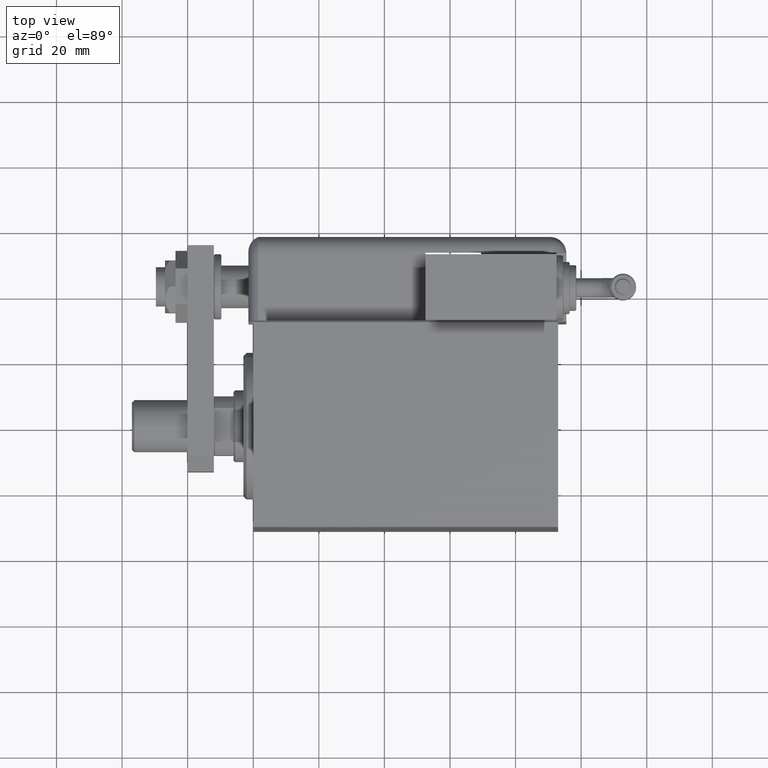
[diagram: clean part render]
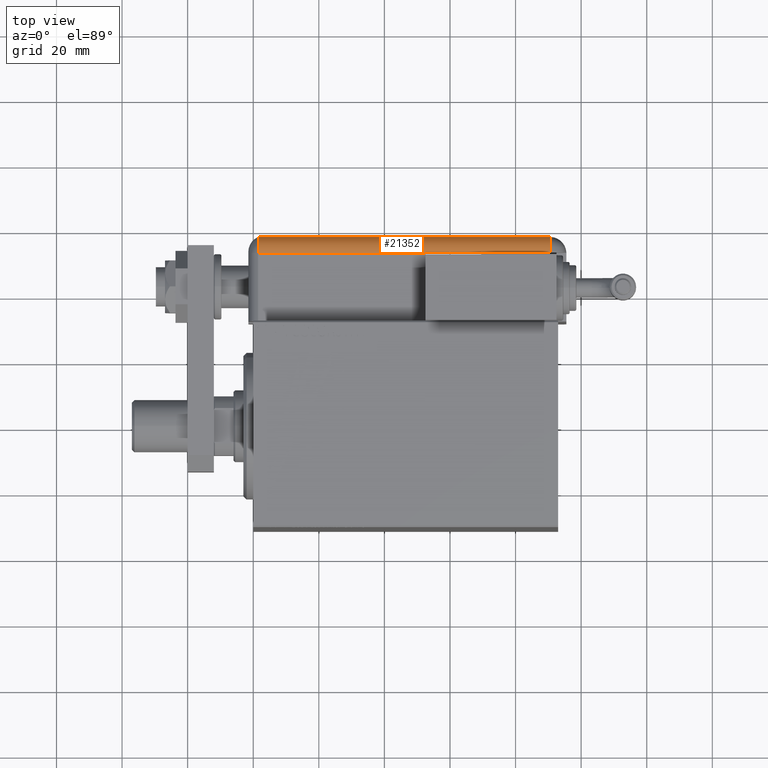
[diagram: same view with one face highlighted and labeled with its STEP entity id]
A machine part, top view. The second image highlights one B-rep face of the part: STEP entity #21352.
In plain terms, the highlighted cylindrical surface (edge-blend (fillet) strip) has radius 5 mm, axis along (1, -0, -0).
Its self-contained STEP definition (entity closure, byte-faithful):
#333 = FACE_OUTER_BOUND ( 'NONE', #27538, .T. ) ;
#1307 = CIRCLE ( 'NONE', #2290, 5.000000000000000888 ) ;
#1867 = EDGE_CURVE ( 'NONE', #25973, #57692, #42803, .T. ) ;
#2288 = DIRECTION ( 'NONE',  ( -1.000000000000000000, 0.000000000000000000, 0.000000000000000000 ) ) ;
#2290 = AXIS2_PLACEMENT_3D ( 'NONE', #12563, #44779, #2288 ) ;
#3392 = CARTESIAN_POINT ( 'NONE',  ( 28.99999999999999645, 20.79999999999998295, 94.00000000000000000 ) ) ;
#3564 = LINE ( 'NONE', #8564, #6517 ) ;
#5529 = VERTEX_POINT ( 'NONE', #5696 ) ;
#5696 = CARTESIAN_POINT ( 'NONE',  ( 23.99999999999999289, 25.79999999999998295, 5.000000000000004441 ) ) ;
#6517 = VECTOR ( 'NONE', #36678, 1000.000000000000000 ) ;
#7137 = CARTESIAN_POINT ( 'NONE',  ( 28.99599839871871154, 21.00000000000000000, 5.000000000000004441 ) ) ;
#8564 = CARTESIAN_POINT ( 'NONE',  ( 28.99999999999999645, 20.79999999999998295, 94.00000000000000000 ) ) ;
#8723 = VERTEX_POINT ( 'NONE', #3392 ) ;
#9998 = DIRECTION ( 'NONE',  ( 0.000000000000000000, 0.000000000000000000, -1.000000000000000000 ) ) ;
#11269 = CARTESIAN_POINT ( 'NONE',  ( 28.99599839871871154, 20.99999999999998579, 94.00000000000000000 ) ) ;
#12563 = CARTESIAN_POINT ( 'NONE',  ( 23.99999999999999289, 20.79999999999998295, 94.00000000000000000 ) ) ;
#14375 = CYLINDRICAL_SURFACE ( 'NONE', #53000, 5.000000000000000888 ) ;
#17599 = CIRCLE ( 'NONE', #52523, 5.000000000000000888 ) ;
#19762 = ORIENTED_EDGE ( 'NONE', *, *, #1867, .F. ) ;
#21029 = EDGE_CURVE ( 'NONE', #53462, #5529, #51701, .T. ) ;
#21352 = ADVANCED_FACE ( 'NONE', ( #333 ), #14375, .T. ) ;
#24386 = EDGE_CURVE ( 'NONE', #8723, #53462, #1307, .T. ) ;
#24971 = DIRECTION ( 'NONE',  ( -1.000000000000000000, 0.000000000000000000, 0.000000000000000000 ) ) ;
#25973 = VERTEX_POINT ( 'NONE', #7137 ) ;
#26086 = DIRECTION ( 'NONE',  ( -1.000000000000000000, 0.000000000000000000, 0.000000000000000000 ) ) ;
#27538 = EDGE_LOOP ( 'NONE', ( #50715, #19762, #36620, #48796, #30682, #51173 ) ) ;
#27962 = DIRECTION ( 'NONE',  ( 0.000000000000000000, 0.000000000000000000, -1.000000000000000000 ) ) ;
#28224 = CARTESIAN_POINT ( 'NONE',  ( 28.99599839871871154, 20.99999999999999289, 43.00000000000000000 ) ) ;
#29390 = VERTEX_POINT ( 'NONE', #39910 ) ;
#30289 = EDGE_CURVE ( 'NONE', #29390, #8723, #3564, .T. ) ;
#30682 = ORIENTED_EDGE ( 'NONE', *, *, #24386, .F. ) ;
#31091 = CARTESIAN_POINT ( 'NONE',  ( 23.99999999999999289, 25.79999999999998295, 94.00000000000000000 ) ) ;
#32622 = AXIS2_PLACEMENT_3D ( 'NONE', #45438, #49508, #26086 ) ;
#33085 = EDGE_CURVE ( 'NONE', #57692, #29390, #17599, .T. ) ;
#36338 = DIRECTION ( 'NONE',  ( 1.000000000000000000, -6.383782391594648845E-14, 0.000000000000000000 ) ) ;
#36620 = ORIENTED_EDGE ( 'NONE', *, *, #38558, .T. ) ;
#36678 = DIRECTION ( 'NONE',  ( -0.000000000000000000, -0.000000000000000000, 1.000000000000000000 ) ) ;
#38558 = EDGE_CURVE ( 'NONE', #25973, #5529, #59543, .T. ) ;
#39910 = CARTESIAN_POINT ( 'NONE',  ( 28.99999999999999645, 20.79999999999998295, 43.00000000000000000 ) ) ;
#40420 = CARTESIAN_POINT ( 'NONE',  ( 23.99999999999999289, 20.79999999999998295, 43.00000000000000000 ) ) ;
#42803 = LINE ( 'NONE', #11269, #51509 ) ;
#44779 = DIRECTION ( 'NONE',  ( -0.000000000000000000, -0.000000000000000000, 1.000000000000000000 ) ) ;
#45438 = CARTESIAN_POINT ( 'NONE',  ( 23.99999999999999289, 20.79999999999998295, 5.000000000000004441 ) ) ;
#48796 = ORIENTED_EDGE ( 'NONE', *, *, #21029, .F. ) ;
#49508 = DIRECTION ( 'NONE',  ( -0.000000000000000000, -0.000000000000000000, 1.000000000000000000 ) ) ;
#50715 = ORIENTED_EDGE ( 'NONE', *, *, #33085, .F. ) ;
#51047 = VECTOR ( 'NONE', #27962, 1000.000000000000000 ) ;
#51173 = ORIENTED_EDGE ( 'NONE', *, *, #30289, .F. ) ;
#51509 = VECTOR ( 'NONE', #54643, 1000.000000000000000 ) ;
#51701 = LINE ( 'NONE', #52012, #51047 ) ;
#52012 = CARTESIAN_POINT ( 'NONE',  ( 23.99999999999999289, 25.79999999999998295, 94.00000000000000000 ) ) ;
#52475 = CARTESIAN_POINT ( 'NONE',  ( 23.99999999999999289, 20.79999999999998295, 94.00000000000000000 ) ) ;
#52523 = AXIS2_PLACEMENT_3D ( 'NONE', #40420, #55061, #36338 ) ;
#53000 = AXIS2_PLACEMENT_3D ( 'NONE', #52475, #9998, #24971 ) ;
#53462 = VERTEX_POINT ( 'NONE', #31091 ) ;
#54643 = DIRECTION ( 'NONE',  ( -0.000000000000000000, -0.000000000000000000, 1.000000000000000000 ) ) ;
#55061 = DIRECTION ( 'NONE',  ( -0.000000000000000000, 0.000000000000000000, -1.000000000000000000 ) ) ;
#57692 = VERTEX_POINT ( 'NONE', #28224 ) ;
#59543 = CIRCLE ( 'NONE', #32622, 5.000000000000000888 ) ;